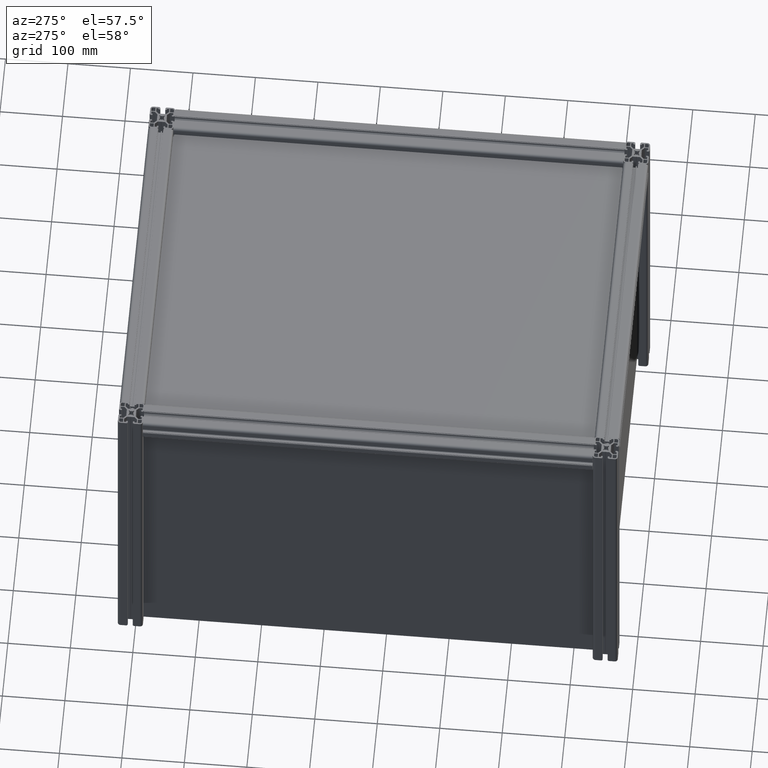
[diagram: clean part render]
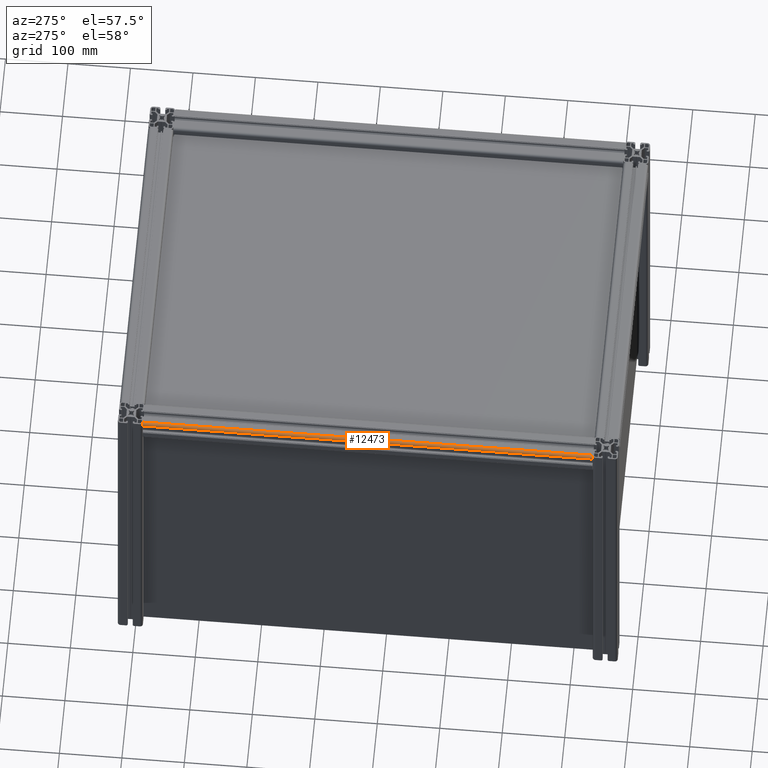
[diagram: same view with one face highlighted and labeled with its STEP entity id]
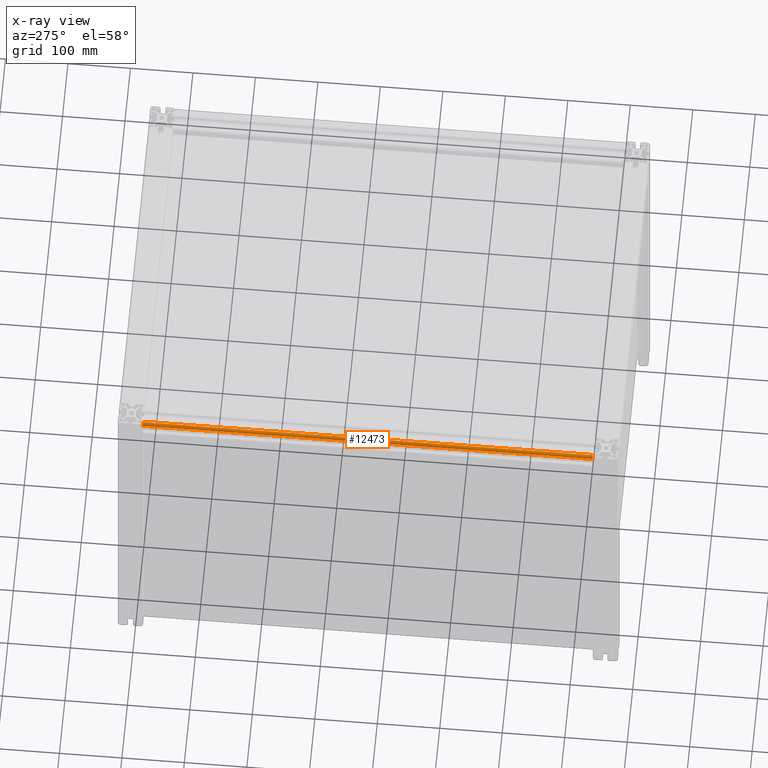
[diagram: x-ray of the same camera — body ghosted, the highlighted face saturated]
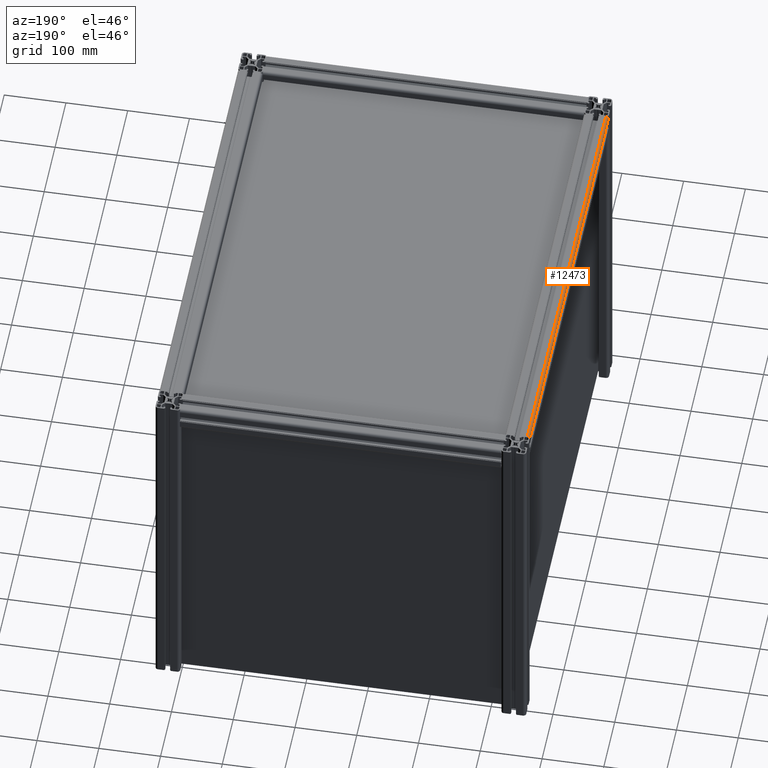
[diagram: same view with one face highlighted and labeled with its STEP entity id]
A machine part, auxiliary view. The second image highlights one B-rep face of the part: STEP entity #12473.
The next image is the same camera in x-ray: the body ghosted, the highlighted face saturated — about 0% of this face is hidden behind the body in this view.
A second angle (auxiliary view) of the same face is appended — the face is thin or edge-on in the first view.
In plain terms, the highlighted cylindrical surface (edge-blend (fillet) strip) has radius 4.5 mm, axis along (-0, 1, 0).
Its self-contained STEP definition (entity closure, byte-faithful):
#8 = VERTEX_POINT ( 'NONE', #8706 ) ;
#1118 = DIRECTION ( 'NONE',  ( -1.000000000000000000, 0.0000000000000000000, 0.0000000000000000000 ) ) ;
#1368 = CIRCLE ( 'NONE', #13005, 4.500000000000000888 ) ;
#1919 = EDGE_LOOP ( 'NONE', ( #13986, #10423, #2729, #2842 ) ) ;
#2054 = LINE ( 'NONE', #3197, #3390 ) ;
#2729 = ORIENTED_EDGE ( 'NONE', *, *, #9349, .F. ) ;
#2842 = ORIENTED_EDGE ( 'NONE', *, *, #6849, .T. ) ;
#3197 = CARTESIAN_POINT ( 'NONE',  ( 20.00000000000000000, 15.50000000000181899, 720.0000000000000000 ) ) ;
#3378 = DIRECTION ( 'NONE',  ( -1.000000000000000000, 0.0000000000000000000, 0.0000000000000000000 ) ) ;
#3390 = VECTOR ( 'NONE', #9431, 1000.000000000000000 ) ;
#3425 = AXIS2_PLACEMENT_3D ( 'NONE', #8743, #9891, #6326 ) ;
#3444 = EDGE_CURVE ( 'NONE', #8, #15094, #10788, .T. ) ;
#3724 = CARTESIAN_POINT ( 'NONE',  ( 20.00000000000000000, 15.50000000000182077, 0.0000000000000000000 ) ) ;
#5527 = AXIS2_PLACEMENT_3D ( 'NONE', #10931, #13424, #1118 ) ;
#5827 = CARTESIAN_POINT ( 'NONE',  ( 15.50000000000000000, 20.00000000000181899, 720.0000000000000000 ) ) ;
#6326 = DIRECTION ( 'NONE',  ( -1.000000000000000000, 0.0000000000000000000, 0.0000000000000000000 ) ) ;
#6849 = EDGE_CURVE ( 'NONE', #11422, #12550, #2054, .T. ) ;
#6994 = CARTESIAN_POINT ( 'NONE',  ( 20.00000000000000000, 15.50000000000181899, 720.0000000000000000 ) ) ;
#7205 = FACE_OUTER_BOUND ( 'NONE', #1919, .T. ) ;
#8494 = CYLINDRICAL_SURFACE ( 'NONE', #5527, 4.500000000000000888 ) ;
#8706 = CARTESIAN_POINT ( 'NONE',  ( 15.50000000000000000, 20.00000000000181899, 0.0000000000000000000 ) ) ;
#8743 = CARTESIAN_POINT ( 'NONE',  ( 15.50000000000000000, 15.50000000000181899, 720.0000000000000000 ) ) ;
#9349 = EDGE_CURVE ( 'NONE', #11422, #15094, #12192, .T. ) ;
#9431 = DIRECTION ( 'NONE',  ( -0.0000000000000000000, -0.0000000000000000000, -1.000000000000000000 ) ) ;
#9458 = EDGE_CURVE ( 'NONE', #12550, #8, #1368, .T. ) ;
#9610 = CARTESIAN_POINT ( 'NONE',  ( 15.50000000000000000, 15.50000000000181899, 0.0000000000000000000 ) ) ;
#9673 = VECTOR ( 'NONE', #15558, 1000.000000000000000 ) ;
#9696 = DIRECTION ( 'NONE',  ( 0.0000000000000000000, 0.0000000000000000000, 1.000000000000000000 ) ) ;
#9891 = DIRECTION ( 'NONE',  ( 0.0000000000000000000, 0.0000000000000000000, 1.000000000000000000 ) ) ;
#10423 = ORIENTED_EDGE ( 'NONE', *, *, #3444, .T. ) ;
#10788 = LINE ( 'NONE', #14342, #9673 ) ;
#10931 = CARTESIAN_POINT ( 'NONE',  ( 15.50000000000000000, 15.50000000000181899, 720.0000000000000000 ) ) ;
#11422 = VERTEX_POINT ( 'NONE', #6994 ) ;
#12192 = CIRCLE ( 'NONE', #3425, 4.500000000000000888 ) ;
#12473 = ADVANCED_FACE ( 'NONE', ( #7205 ), #8494, .T. ) ;
#12550 = VERTEX_POINT ( 'NONE', #3724 ) ;
#13005 = AXIS2_PLACEMENT_3D ( 'NONE', #9610, #9696, #3378 ) ;
#13424 = DIRECTION ( 'NONE',  ( -0.0000000000000000000, -0.0000000000000000000, -1.000000000000000000 ) ) ;
#13986 = ORIENTED_EDGE ( 'NONE', *, *, #9458, .T. ) ;
#14342 = CARTESIAN_POINT ( 'NONE',  ( 15.50000000000000000, 20.00000000000181899, 720.0000000000000000 ) ) ;
#15094 = VERTEX_POINT ( 'NONE', #5827 ) ;
#15558 = DIRECTION ( 'NONE',  ( -0.0000000000000000000, 0.0000000000000000000, 1.000000000000000000 ) ) ;